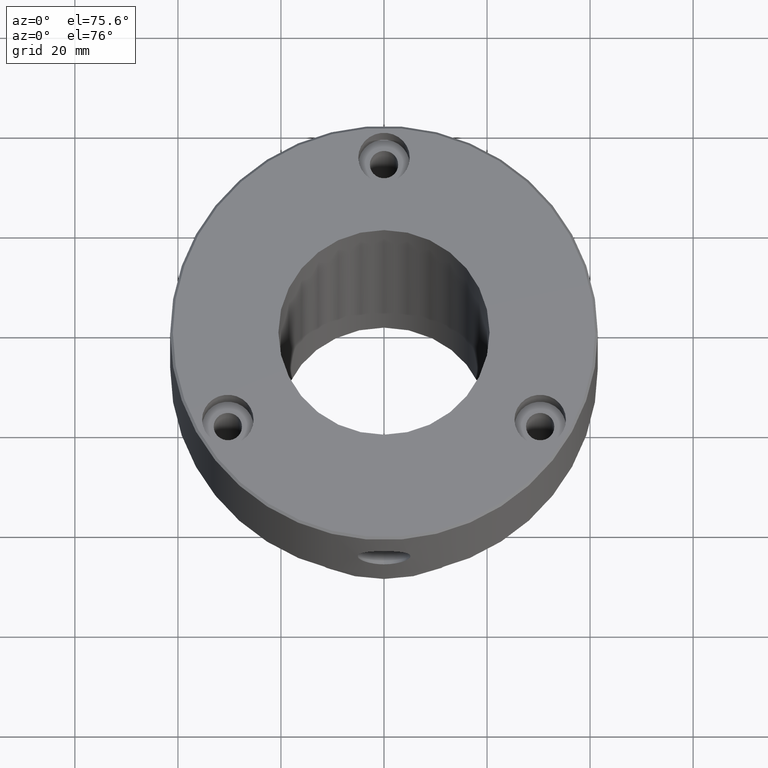
[diagram: clean part render]
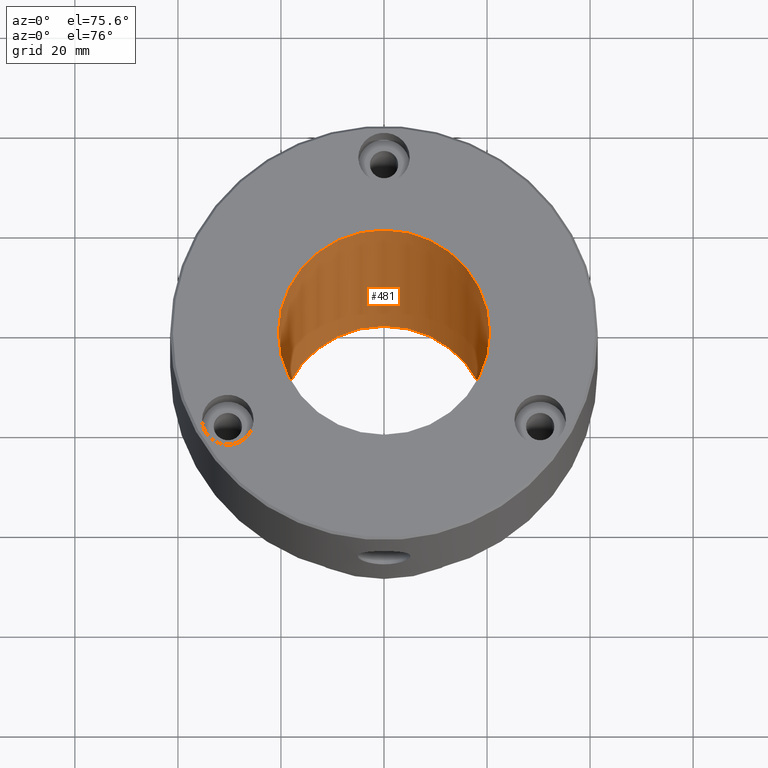
[diagram: same view with one face highlighted and labeled with its STEP entity id]
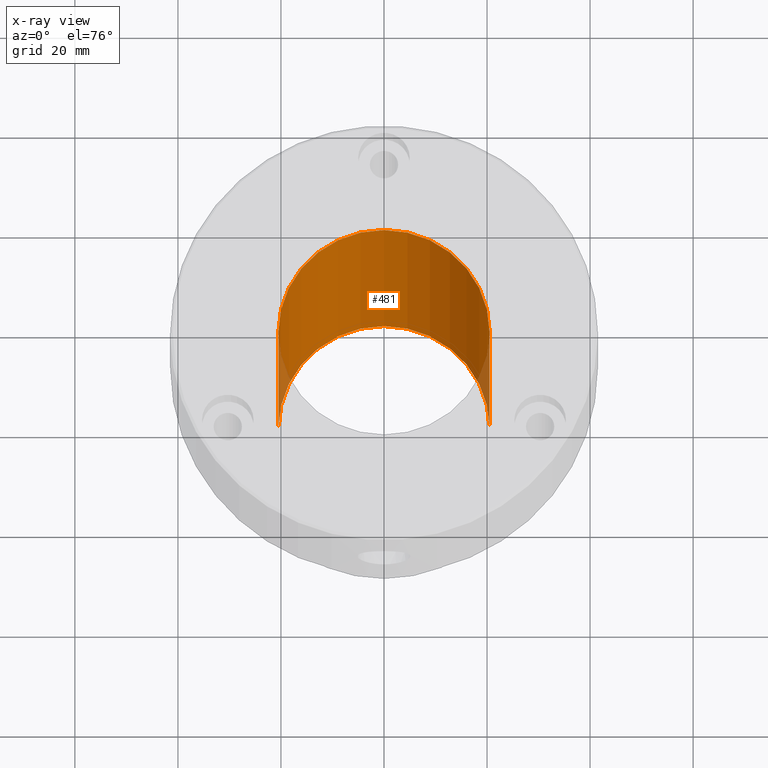
[diagram: x-ray of the same camera — body ghosted, the highlighted face saturated]
A machine part, auxiliary view. The second image highlights one B-rep face of the part: STEP entity #481.
The next image is the same camera in x-ray: the body ghosted, the highlighted face saturated — about 4% of this face is hidden behind the body in this view.
In plain terms, the highlighted cylindrical surface (partial cylindrical patch) has radius 20.5 mm, axis along (-0, -0, -1).
Its self-contained STEP definition (entity closure, byte-faithful):
#67 = ORIENTED_EDGE ( 'NONE', *, *, #236, .F. ) ;
#71 = VERTEX_POINT ( 'NONE', #338 ) ;
#88 = FACE_OUTER_BOUND ( 'NONE', #260, .T. ) ;
#130 = DIRECTION ( 'NONE',  ( -0.000000000000000000, -0.000000000000000000, -1.000000000000000000 ) ) ;
#179 = VERTEX_POINT ( 'NONE', #707 ) ;
#189 = CYLINDRICAL_SURFACE ( 'NONE', #353, 20.50000000000000000 ) ;
#236 = EDGE_CURVE ( 'NONE', #337, #179, #1251, .T. ) ;
#260 = EDGE_LOOP ( 'NONE', ( #67, #841, #1014, #910 ) ) ;
#296 = DIRECTION ( 'NONE',  ( -1.000000000000000000, 0.000000000000000000, 0.000000000000000000 ) ) ;
#337 = VERTEX_POINT ( 'NONE', #814 ) ;
#338 = CARTESIAN_POINT ( 'NONE',  ( -20.50000000000000000, 0.000000000000000000, -75.00000000000000000 ) ) ;
#353 = AXIS2_PLACEMENT_3D ( 'NONE', #566, #766, #296 ) ;
#372 = DIRECTION ( 'NONE',  ( -1.000000000000000000, 0.000000000000000000, 0.000000000000000000 ) ) ;
#444 = DIRECTION ( 'NONE',  ( -0.000000000000000000, -0.000000000000000000, -1.000000000000000000 ) ) ;
#481 = ADVANCED_FACE ( 'NONE', ( #88 ), #189, .F. ) ;
#495 = AXIS2_PLACEMENT_3D ( 'NONE', #1230, #1246, #372 ) ;
#520 = EDGE_CURVE ( 'NONE', #669, #337, #1214, .T. ) ;
#542 = CARTESIAN_POINT ( 'NONE',  ( -20.50000000000000000, 0.000000000000000000, 0.000000000000000000 ) ) ;
#566 = CARTESIAN_POINT ( 'NONE',  ( 0.000000000000000000, 0.000000000000000000, 0.000000000000000000 ) ) ;
#622 = EDGE_CURVE ( 'NONE', #669, #71, #1021, .T. ) ;
#669 = VERTEX_POINT ( 'NONE', #1133 ) ;
#707 = CARTESIAN_POINT ( 'NONE',  ( 20.50000000000000000, 2.510525938252074481E-15, -75.00000000000000000 ) ) ;
#766 = DIRECTION ( 'NONE',  ( -0.000000000000000000, -0.000000000000000000, -1.000000000000000000 ) ) ;
#771 = VECTOR ( 'NONE', #130, 1000.000000000000000 ) ;
#789 = VECTOR ( 'NONE', #444, 1000.000000000000000 ) ;
#814 = CARTESIAN_POINT ( 'NONE',  ( 20.50000000000000000, 2.510525938252074481E-15, 0.000000000000000000 ) ) ;
#841 = ORIENTED_EDGE ( 'NONE', *, *, #520, .F. ) ;
#871 = CIRCLE ( 'NONE', #495, 20.50000000000000000 ) ;
#887 = AXIS2_PLACEMENT_3D ( 'NONE', #1100, #1015, #920 ) ;
#910 = ORIENTED_EDGE ( 'NONE', *, *, #1129, .T. ) ;
#920 = DIRECTION ( 'NONE',  ( -1.000000000000000000, 0.000000000000000000, 0.000000000000000000 ) ) ;
#1014 = ORIENTED_EDGE ( 'NONE', *, *, #622, .T. ) ;
#1015 = DIRECTION ( 'NONE',  ( 0.000000000000000000, 0.000000000000000000, -1.000000000000000000 ) ) ;
#1021 = LINE ( 'NONE', #542, #789 ) ;
#1100 = CARTESIAN_POINT ( 'NONE',  ( 0.000000000000000000, 0.000000000000000000, 0.000000000000000000 ) ) ;
#1129 = EDGE_CURVE ( 'NONE', #71, #179, #871, .T. ) ;
#1133 = CARTESIAN_POINT ( 'NONE',  ( -20.50000000000000000, 0.000000000000000000, 0.000000000000000000 ) ) ;
#1140 = CARTESIAN_POINT ( 'NONE',  ( 20.50000000000000000, 2.510525938252074481E-15, 0.000000000000000000 ) ) ;
#1214 = CIRCLE ( 'NONE', #887, 20.50000000000000000 ) ;
#1230 = CARTESIAN_POINT ( 'NONE',  ( 0.000000000000000000, 0.000000000000000000, -75.00000000000000000 ) ) ;
#1246 = DIRECTION ( 'NONE',  ( 0.000000000000000000, 0.000000000000000000, -1.000000000000000000 ) ) ;
#1251 = LINE ( 'NONE', #1140, #771 ) ;